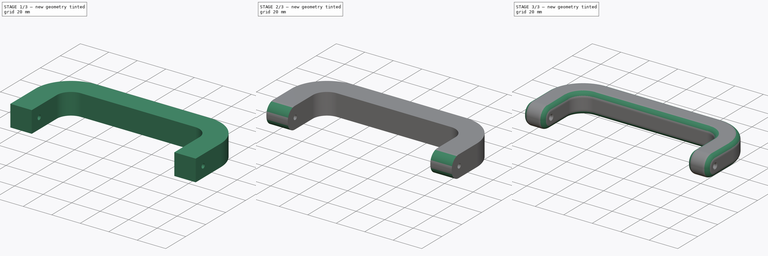
[diagram: build sequence overview — one tinted view per stage of 3, left to right]
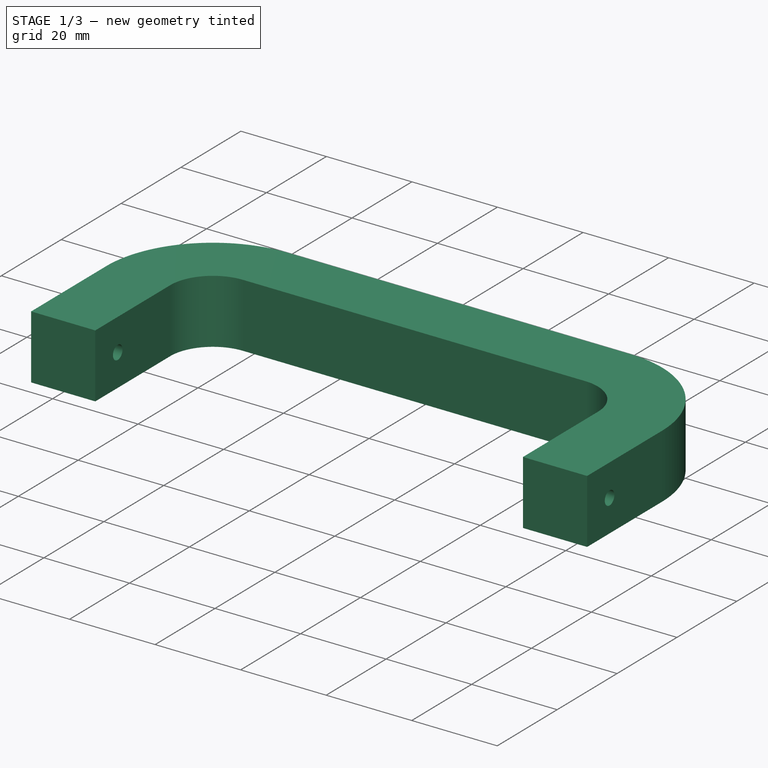
[diagram: stage 1 of 3 — iso view after this stage's code; geometry added in this stage tinted green]
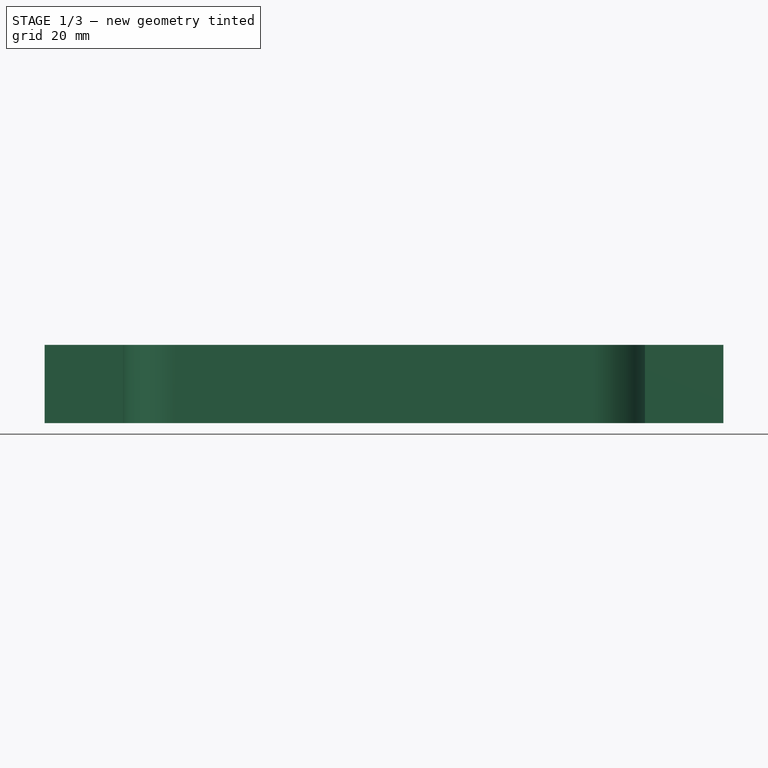
[diagram: stage 1 of 3 — front view after this stage's code; geometry added in this stage tinted green]
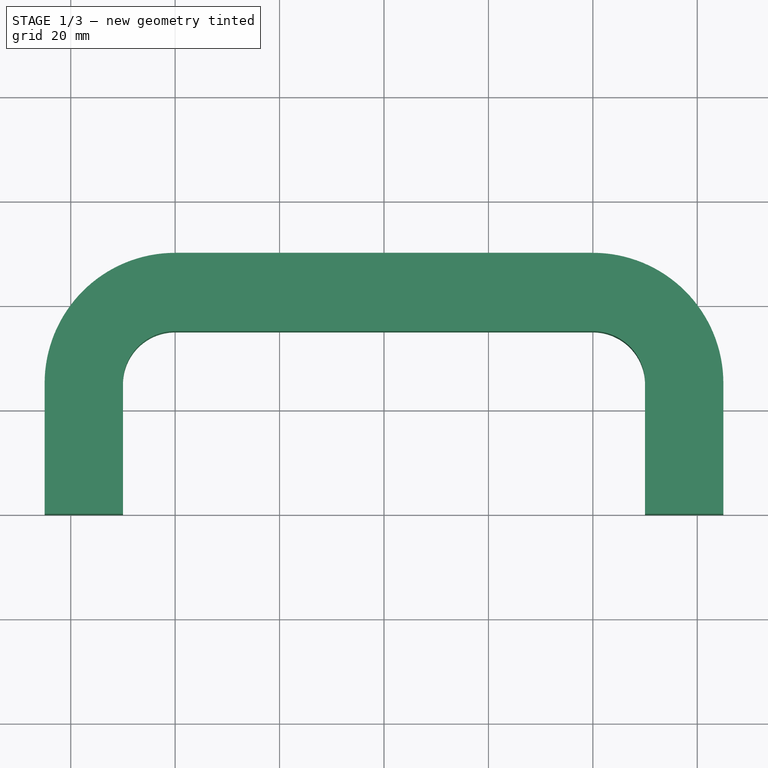
[diagram: stage 1 of 3 — top view after this stage's code; geometry added in this stage tinted green]
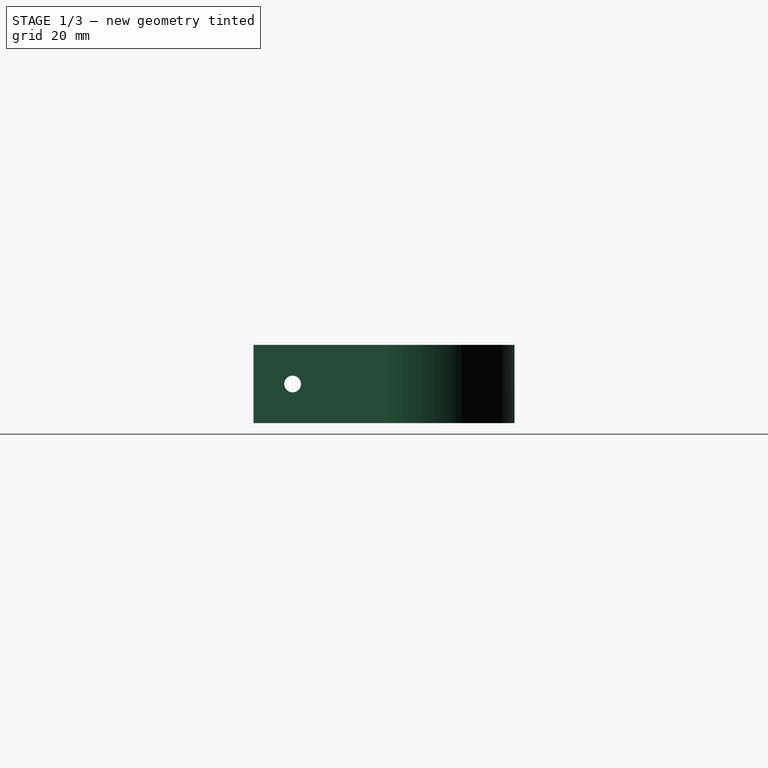
[diagram: stage 1 of 3 — right view after this stage's code; geometry added in this stage tinted green]
FCSTD DOCUMENT  (FreeCAD 0.22R38314 (Git))
Label: Handle
License: All rights reserved
LicenseURL: https://en.wikipedia.org/wiki/All_rights_reserved
objects: Sketcher::SketchObject×2, PartDesign::Fillet×2, PartDesign::Pad×1, PartDesign::Pocket×1, PartDesign::Chamfer×1, PartDesign::Body×1, Measure::MeasureDistanceDetached×1, App::DocumentObjectGroup×1
note: 18 computed .brp shape members not serialized (recipe doc carries the construction recipe); baked Part::Feature solids carry a one-line shape summary decoded from their .brp

FEATURE [Sketcher::SketchObject] Sketch  label="Main_Sketch"
  AttachmentSupport = -> [XY_Plane]
  FullyConstrained = true
  MapMode = 5
  sketch-geometry (14):
    g0: LineSegment StartX=-65 StartY=0 StartZ=0 EndX=-65 EndY=25 EndZ=0
    g1: ArcOfCircle CenterX=-40 CenterY=25 CenterZ=0 NormalX=0 NormalY=0 NormalZ=1 AngleXU=0 Radius=25 StartAngle=1.5708 EndAngle=3.14159
    g2: LineSegment StartX=-40 StartY=50 StartZ=0 EndX=0 EndY=50 EndZ=0
    g3: LineSegment StartX=-50 StartY=0 StartZ=0 EndX=-50 EndY=25 EndZ=0
    g4: LineSegment StartX=0 StartY=35 StartZ=0 EndX=-40 EndY=35 EndZ=0
    g5: ArcOfCircle CenterX=-40 CenterY=25 CenterZ=0 NormalX=0 NormalY=0 NormalZ=1 AngleXU=0 Radius=10 StartAngle=1.5708 EndAngle=3.14159
    g6: LineSegment StartX=-65 StartY=0 StartZ=0 EndX=-50 EndY=0 EndZ=0
    g7: LineSegment StartX=65 StartY=0 StartZ=0 EndX=65 EndY=25 EndZ=0
    g8: ArcOfCircle CenterX=40 CenterY=25 CenterZ=0 NormalX=0 NormalY=0 NormalZ=1 AngleXU=0 Radius=25 StartAngle=0 EndAngle=1.5708
    g9: LineSegment StartX=40 StartY=50 StartZ=0 EndX=0 EndY=50 EndZ=0
    g10: LineSegment StartX=50 StartY=0 StartZ=0 EndX=50 EndY=25 EndZ=0
    g11: LineSegment StartX=0 StartY=35 StartZ=0 EndX=40 EndY=35 EndZ=0
    g12: ArcOfCircle CenterX=40 CenterY=25 CenterZ=0 NormalX=0 NormalY=0 NormalZ=1 AngleXU=0 Radius=10 StartAngle=0 EndAngle=1.5708
    g13: LineSegment StartX=65 StartY=0 StartZ=0 EndX=50 EndY=0 EndZ=0
  constraints (38):
    c: PointOnObject(g0,g-1)
    c: Vertical(g0)
    c: PointOnObject(g2,g-2)
    c: Horizontal(g2)
    c: Tangent(g1,g0) = 1.5708
    c: Tangent(g2,g1) = 1.5708
    c: Distance(g0,g-2) = 65
    c: Distance(g2,g-1) = 50
    c: Distance(g1,g0) = 25
    c: PointOnObject(g3,g-1)
    c: Vertical(g3)
    c: PointOnObject(g4,g-2)
    c: Horizontal(g4)
    c: Equal(g3,g0)
    c: Equal(g4,g2)
    c: Tangent(g5,g3) = 1.5708
    c: Tangent(g5,g4) = -1.5708
    c: Distance(g2,g4) = 15
    c: Coincident(g6,g0)
    c: Coincident(g6,g3)
    c: Vertical(g7)
    c: Horizontal(g9)
    c: Tangent(g8,g7) = -1.5708
    c: Tangent(g9,g8) = -1.5708
    c: Vertical(g10)
    c: Horizontal(g11)
    c: Equal(g10,g7)
    c: Equal(g11,g9)
    c: Tangent(g12,g10) = -1.5708
    c: Tangent(g12,g11) = 1.5708
    c: Coincident(g13,g7)
    c: Coincident(g13,g10)
    c: Coincident(g11,g4)
    c: Coincident(g9,g2)
    c: PointOnObject(g10,g-1)
    c: PointOnObject(g7,g-1)
    c: Equal(g9,g2)
    c: Equal(g8,g1)
FEATURE [PartDesign::Pad] Pad  label="Main_Pad"
  Direction = (0,0,1)
  Length = 15
  Length2 = 10
  Profile = -> Sketch
  ReferenceAxis = -> Sketch [N_Axis]
  Refine = true
  Suppressed = false
  Type = 0
FEATURE [Sketcher::SketchObject] Sketch001  label="Hinge_Sketch"
  AttachmentSupport = -> [Pad]
  ExternalGeometry = -> [Pad]
  FullyConstrained = true
  MapMode = 5
  Placement = pos=(65,0,0) rot=(0.57735,0.57735,0.57735;2.0944rad)
  sketch-geometry (3):
    g0: LineSegment StartX=0 StartY=0 StartZ=0 EndX=7.5 EndY=7.5 EndZ=0
    g1: LineSegment StartX=7.5 StartY=7.5 StartZ=0 EndX=-9e-16 EndY=15 EndZ=0
    g2: Circle CenterX=7.5 CenterY=7.5 CenterZ=0 NormalX=0 NormalY=0 NormalZ=1 AngleXU=0 Radius=1.6
  constraints (7):
    c: Coincident(g0,g-1)
    c: Coincident(g1,g0)
    c: Coincident(g1,g-4)
    c: Equal(g0,g1)
    c: Angle(g1,g0) = 1.5708
    c: Coincident(g2,g0)
    c: Diameter(g2) = 3.2
FEATURE [PartDesign::Pocket] Pocket  label="Hinge_Pocket"
  BaseFeature = -> Pad
  Direction = (-1,0,0)
  Length = 0
  Length2 = 5
  Profile = -> Sketch001
  ReferenceAxis = -> Sketch001 [N_Axis]
  Refine = true
  Suppressed = false
  Type = 1
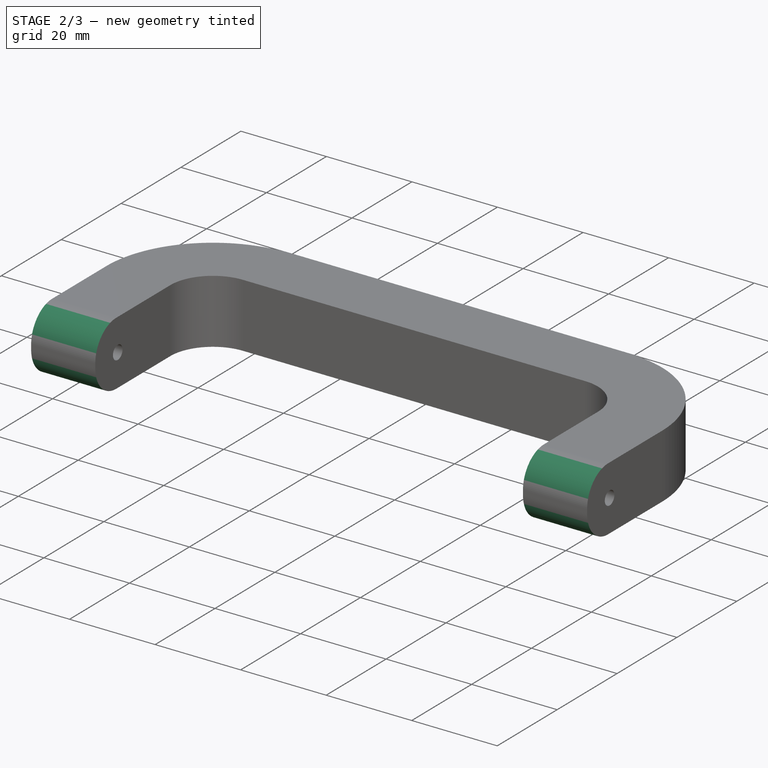
[diagram: stage 2 of 3 — iso view after this stage's code; geometry added in this stage tinted green]
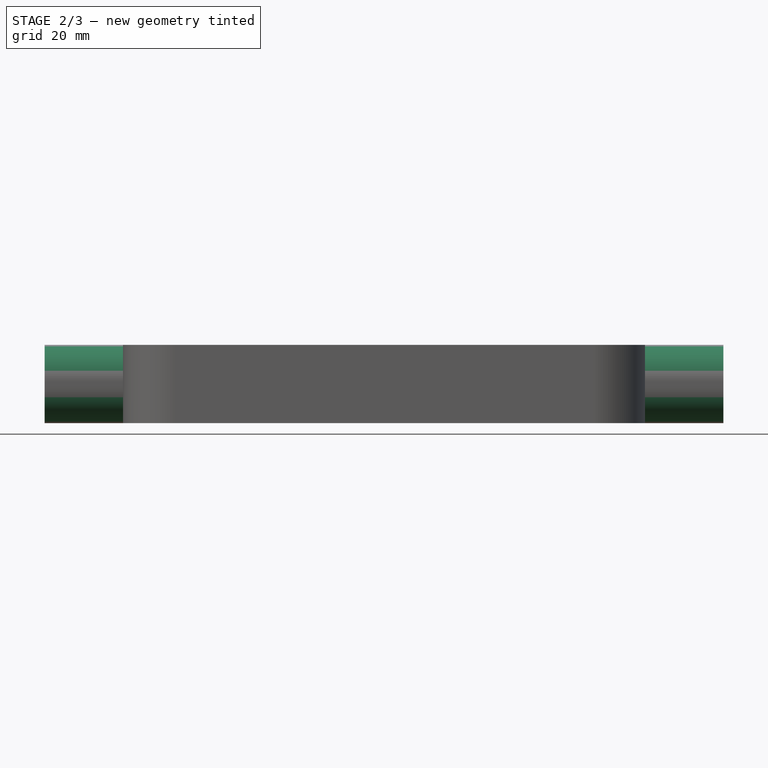
[diagram: stage 2 of 3 — front view after this stage's code; geometry added in this stage tinted green]
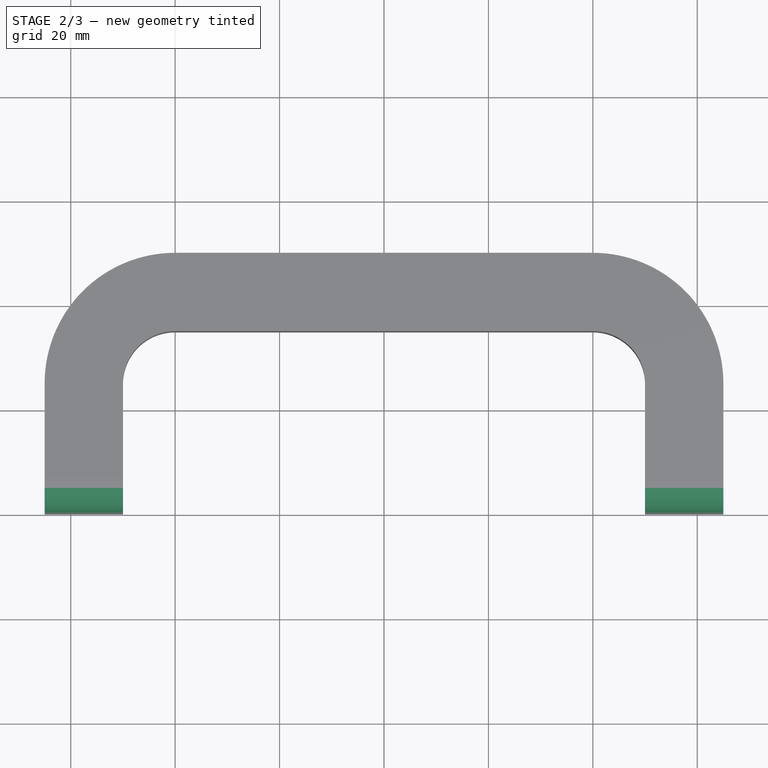
[diagram: stage 2 of 3 — top view after this stage's code; geometry added in this stage tinted green]
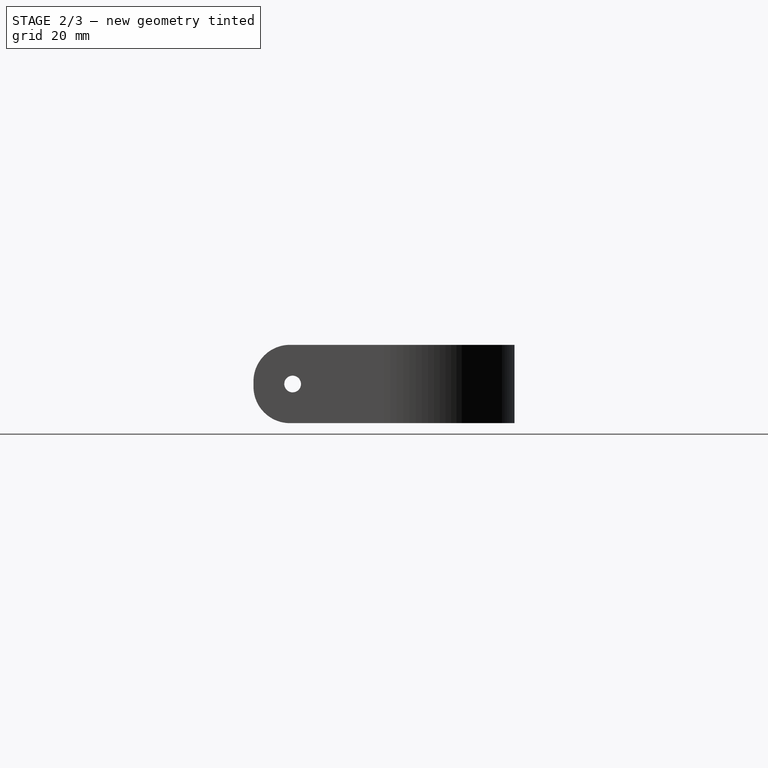
[diagram: stage 2 of 3 — right view after this stage's code; geometry added in this stage tinted green]
FEATURE [PartDesign::Fillet] Fillet  label="Handle_End_Fillet"
  Base = -> Pocket [Edge17,Edge26,Edge3,Edge4]
  BaseFeature = -> Pocket
  Radius = 7
  Refine = true
  SupportTransform = false
  Suppressed = false
  UseAllEdges = false
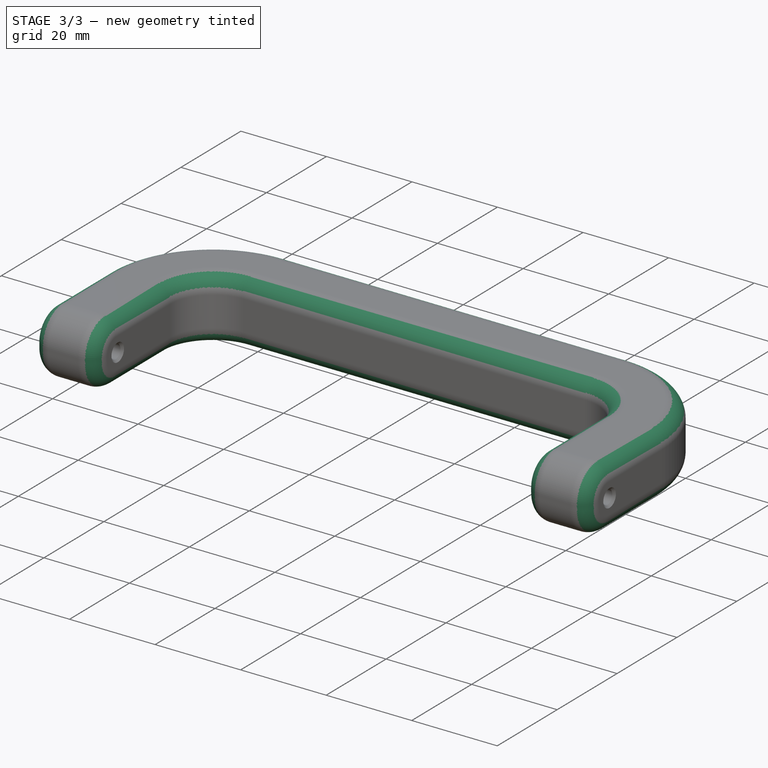
[diagram: stage 3 of 3 — iso view after this stage's code; geometry added in this stage tinted green]
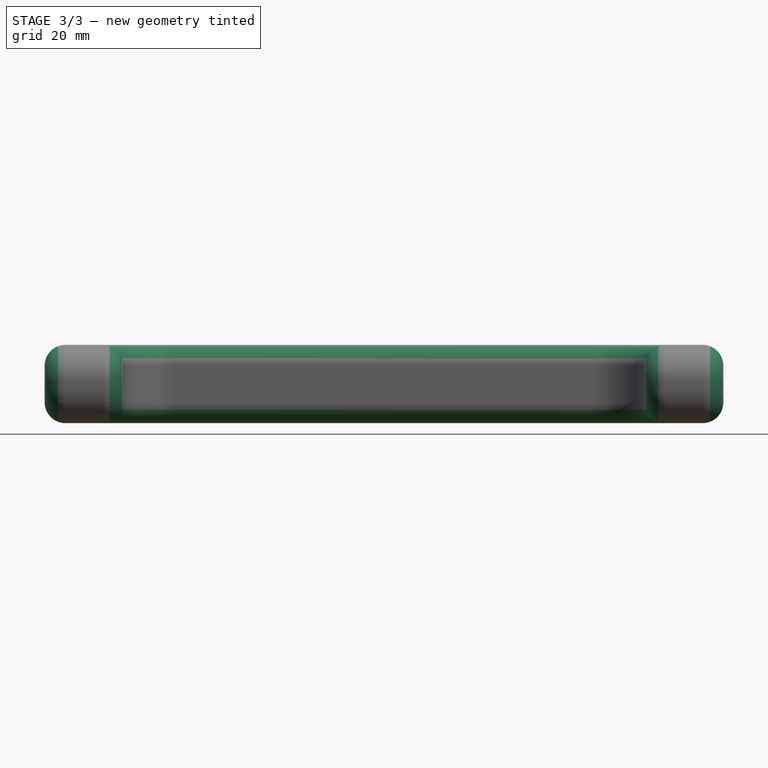
[diagram: stage 3 of 3 — front view after this stage's code; geometry added in this stage tinted green]
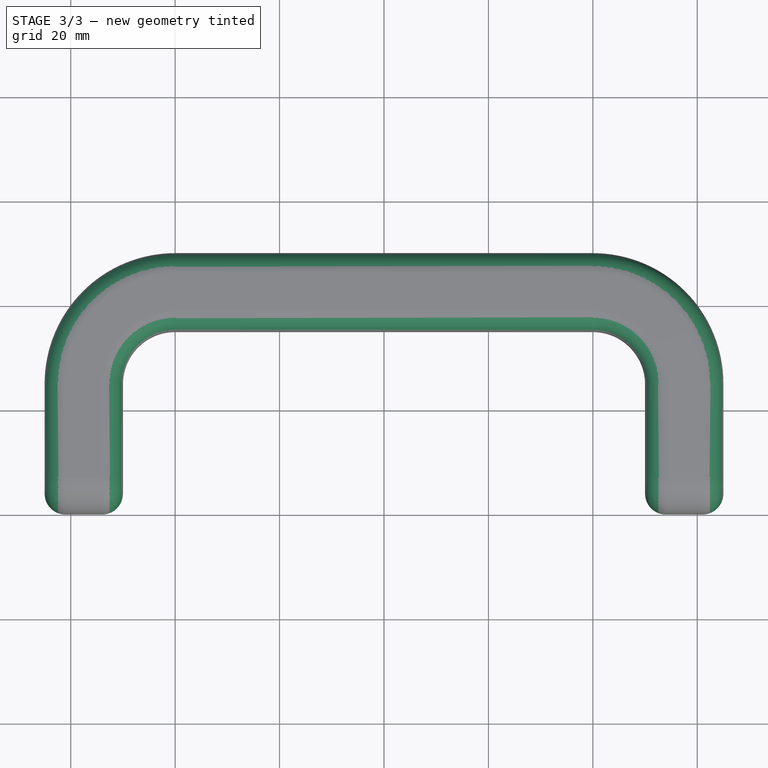
[diagram: stage 3 of 3 — top view after this stage's code; geometry added in this stage tinted green]
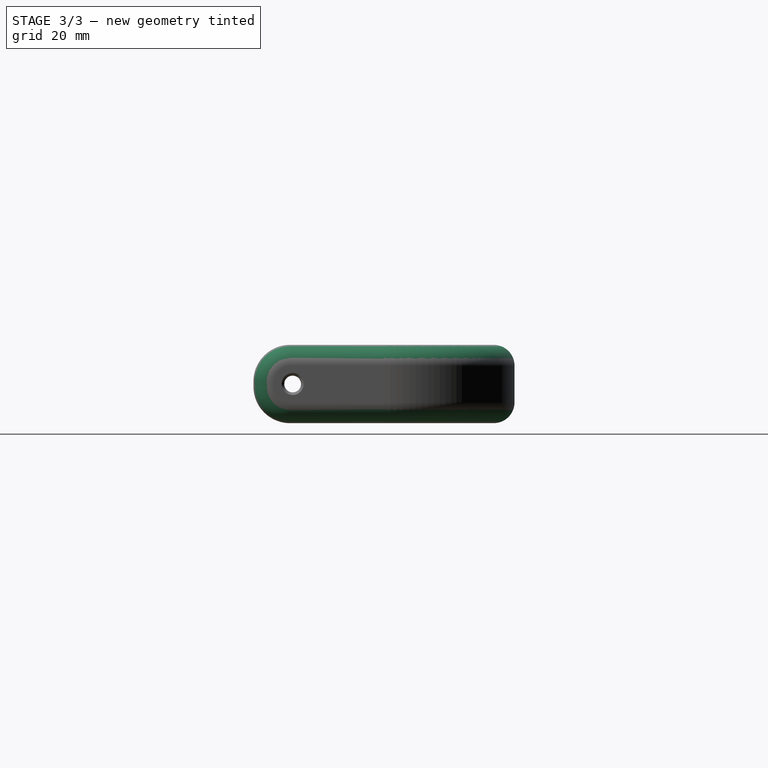
[diagram: stage 3 of 3 — right view after this stage's code; geometry added in this stage tinted green]
FEATURE [PartDesign::Fillet] Fillet001  label="Handle_Edge_Fillet"
  Base = -> Fillet [Edge45,Edge23,Edge43,Edge44,Edge49,Edge50,Edge51,Edge36,Edge34,Edge33,Edge24,Edge31,Edge22,Edge32,Edge29,Edge30,Edge21,Edge28,Edge8,Edge16,Edge14,Edge6,Edge1,Edge4,Edge5,Edge12,Edge15,Edge7,Edge19,Edge20,Edge25,Edge27]
  BaseFeature = -> Fillet
  Radius = 4
  Refine = true
  SupportTransform = false
  Suppressed = false
  UseAllEdges = false
FEATURE [PartDesign::Chamfer] Chamfer  label="Hinge_Hole_Chamfer"
  Angle = 45
  Base = -> Fillet001 [Edge43,Edge108,Edge112,Edge36]
  BaseFeature = -> Fillet001
  ChamferType = 0
  FlipDirection = false
  Refine = true
  Size = 0.5
  Size2 = 1
  SupportTransform = false
  Suppressed = false
  UseAllEdges = false
FEATURE [PartDesign::Body] Body
  AllowCompound = false
  Group = -> [Sketch,Pad,Sketch001,Pocket,Fillet,Fillet001,Chamfer]
  Origin = -> Origin
  Tip = -> Chamfer
FEATURE [Measure::MeasureDistanceDetached] Distance_Free  label="Distance_Free: 0.00 mm"
  Distance = 0
  DistanceX = 0
  DistanceY = 0
  DistanceZ = 0
  Position1 = (0,0,0)
  Position2 = (0,0,0)
FEATURE [App::DocumentObjectGroup] Measurements
  Group = -> [Distance_Free]
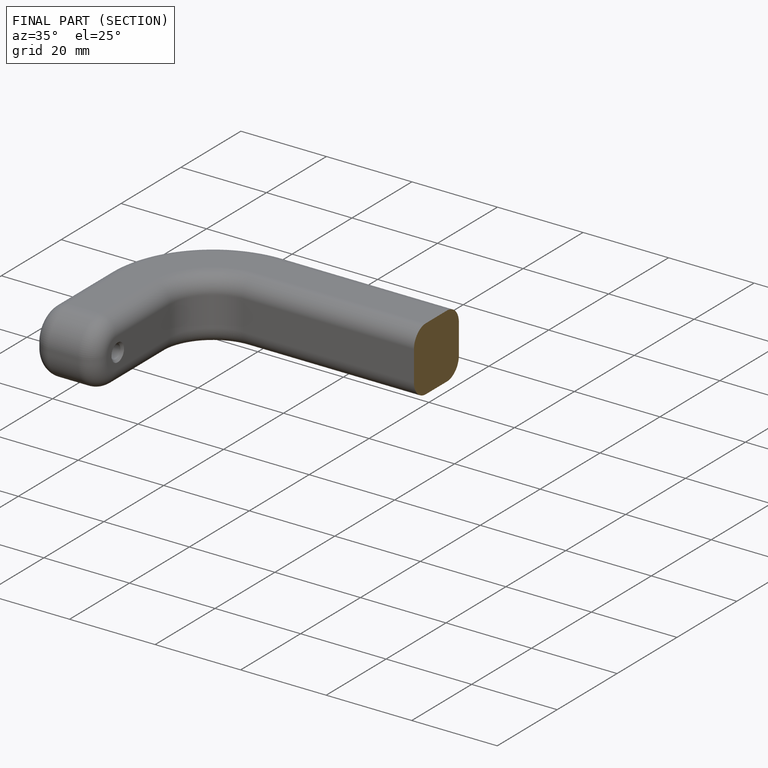
[diagram: finished part — half-section view (interior)]
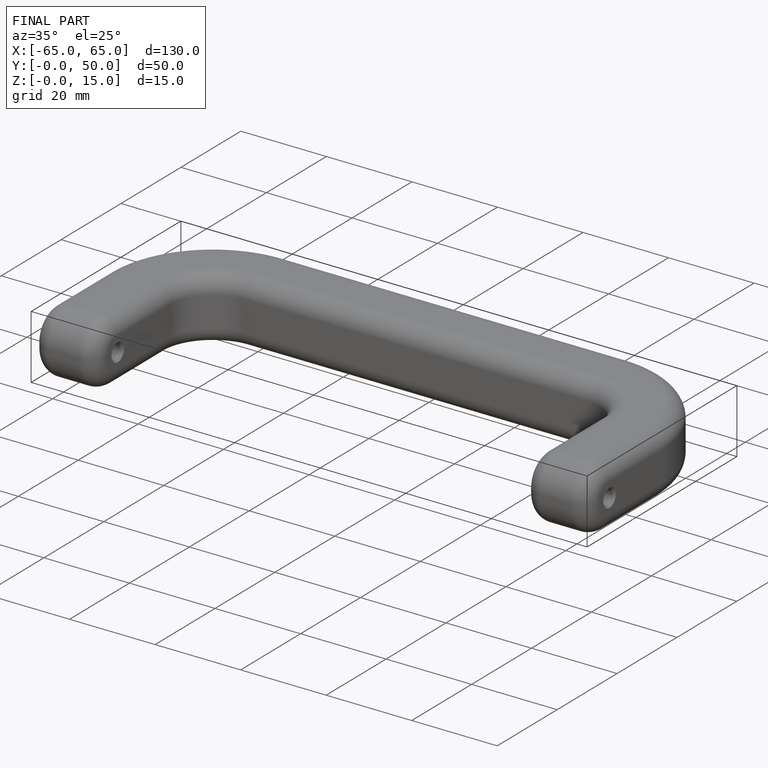
[diagram: finished part — iso view with bounding-box wireframe]
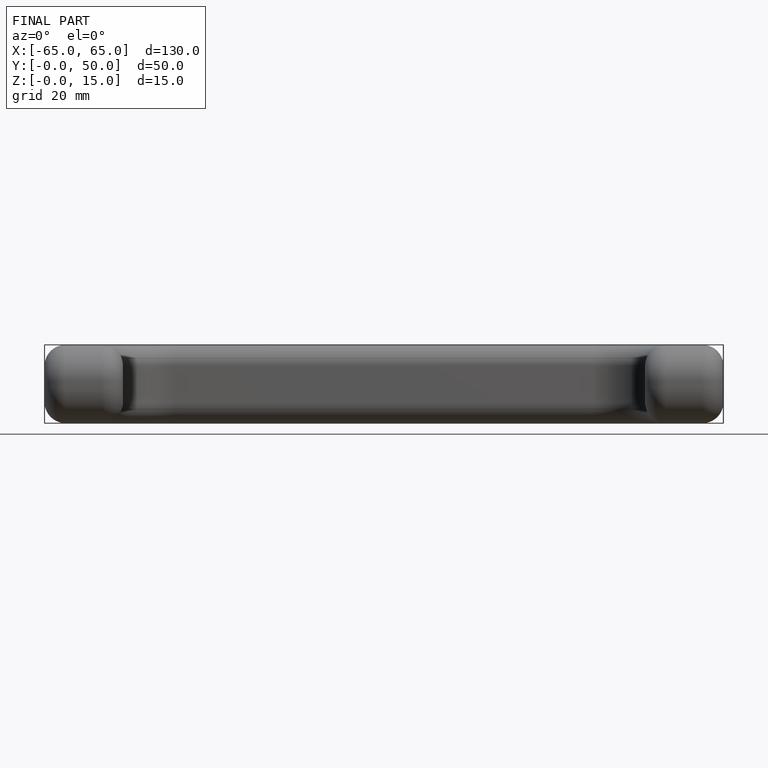
[diagram: finished part — front view with bounding-box wireframe]
